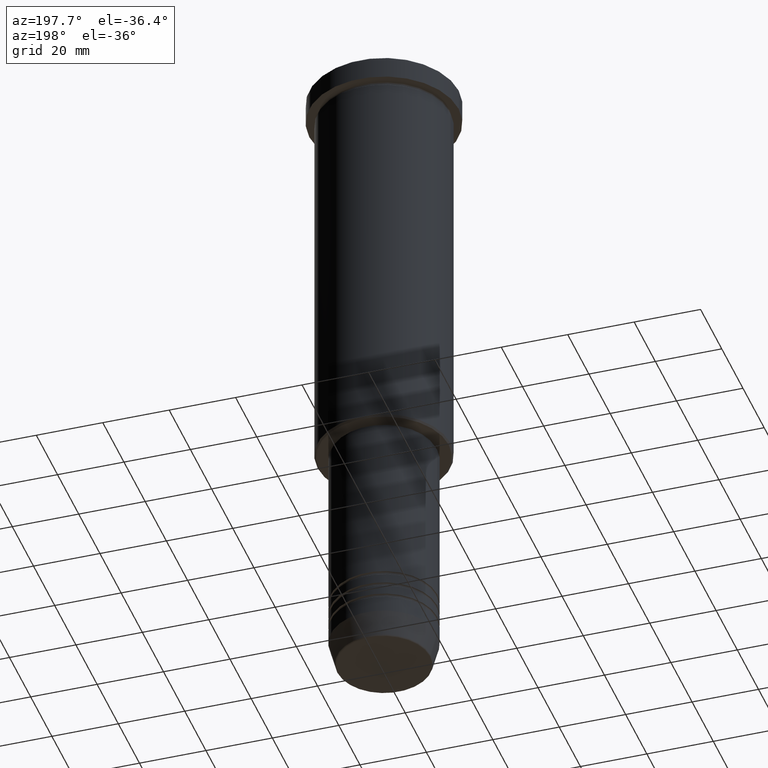
[diagram: clean part render]
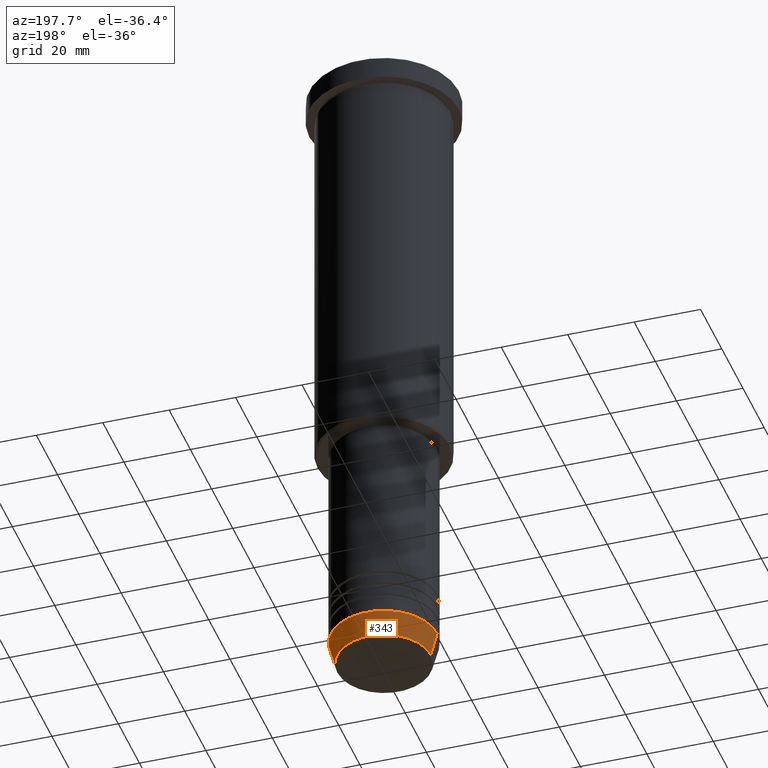
[diagram: same view with one face highlighted and labeled with its STEP entity id]
A machine part, auxiliary view. The second image highlights one B-rep face of the part: STEP entity #343.
In plain terms, the highlighted conical surface has half-angle 15 deg.
Its self-contained STEP definition (entity closure, byte-faithful):
#32 = CARTESIAN_POINT ( 'NONE',  ( 0.000000000000000000, 0.000000000000000000, -199.6294095225512706 ) ) ;
#116 = EDGE_CURVE ( 'NONE', #689, #210, #324, .T. ) ;
#140 = DIRECTION ( 'NONE',  ( -0.2588190451025213501, 3.169619151431772337E-17, 0.9659258262890680902 ) ) ;
#203 = DIRECTION ( 'NONE',  ( 0.2588190451025213501, 0.000000000000000000, 0.9659258262890680902 ) ) ;
#204 = VERTEX_POINT ( 'NONE', #967 ) ;
#210 = VERTEX_POINT ( 'NONE', #706 ) ;
#237 = VERTEX_POINT ( 'NONE', #720 ) ;
#304 = DIRECTION ( 'NONE',  ( 1.000000000000000000, 0.000000000000000000, 0.000000000000000000 ) ) ;
#309 = CARTESIAN_POINT ( 'NONE',  ( 0.000000000000000000, 0.000000000000000000, -192.5000000000000284 ) ) ;
#324 = LINE ( 'NONE', #1071, #821 ) ;
#343 = ADVANCED_FACE ( 'NONE', ( #475 ), #375, .T. ) ;
#344 = DIRECTION ( 'NONE',  ( -0.000000000000000000, -0.000000000000000000, 1.000000000000000000 ) ) ;
#362 = ORIENTED_EDGE ( 'NONE', *, *, #823, .F. ) ;
#375 = CONICAL_SURFACE ( 'NONE', #1024, 16.00000000000000000, 0.2617993877991500740 ) ;
#403 = ORIENTED_EDGE ( 'NONE', *, *, #116, .T. ) ;
#460 = DIRECTION ( 'NONE',  ( 1.000000000000000000, 0.000000000000000000, 0.000000000000000000 ) ) ;
#475 = FACE_OUTER_BOUND ( 'NONE', #735, .T. ) ;
#497 = LINE ( 'NONE', #1018, #1109 ) ;
#632 = EDGE_CURVE ( 'NONE', #204, #210, #995, .T. ) ;
#689 = VERTEX_POINT ( 'NONE', #1044 ) ;
#706 = CARTESIAN_POINT ( 'NONE',  ( -16.00000000000000000, 1.959434878635765131E-15, -192.5000000000000284 ) ) ;
#720 = CARTESIAN_POINT ( 'NONE',  ( 14.08968047592163941, 0.000000000000000000, -199.6294095225512706 ) ) ;
#735 = EDGE_LOOP ( 'NONE', ( #937, #403, #1133, #362 ) ) ;
#740 = AXIS2_PLACEMENT_3D ( 'NONE', #32, #766, #304 ) ;
#766 = DIRECTION ( 'NONE',  ( -0.000000000000000000, -0.000000000000000000, 1.000000000000000000 ) ) ;
#792 = DIRECTION ( 'NONE',  ( 1.000000000000000000, 0.000000000000000000, 0.000000000000000000 ) ) ;
#821 = VECTOR ( 'NONE', #140, 1000.000000000000000 ) ;
#823 = EDGE_CURVE ( 'NONE', #237, #204, #497, .T. ) ;
#844 = EDGE_CURVE ( 'NONE', #237, #689, #1048, .T. ) ;
#846 = CARTESIAN_POINT ( 'NONE',  ( 0.000000000000000000, 0.000000000000000000, -192.5000000000000284 ) ) ;
#925 = AXIS2_PLACEMENT_3D ( 'NONE', #309, #1151, #792 ) ;
#937 = ORIENTED_EDGE ( 'NONE', *, *, #844, .T. ) ;
#967 = CARTESIAN_POINT ( 'NONE',  ( 16.00000000000000000, 0.000000000000000000, -192.5000000000000284 ) ) ;
#995 = CIRCLE ( 'NONE', #925, 16.00000000000000000 ) ;
#1018 = CARTESIAN_POINT ( 'NONE',  ( 16.00000000000000000, 0.000000000000000000, -192.5000000000000284 ) ) ;
#1024 = AXIS2_PLACEMENT_3D ( 'NONE', #846, #344, #460 ) ;
#1044 = CARTESIAN_POINT ( 'NONE',  ( -14.08968047592163941, 1.842461544110202058E-15, -199.6294095225512706 ) ) ;
#1048 = CIRCLE ( 'NONE', #740, 14.08968047592163941 ) ;
#1071 = CARTESIAN_POINT ( 'NONE',  ( -16.00000000000000000, 1.959434878635765131E-15, -192.5000000000000284 ) ) ;
#1109 = VECTOR ( 'NONE', #203, 1000.000000000000000 ) ;
#1133 = ORIENTED_EDGE ( 'NONE', *, *, #632, .F. ) ;
#1151 = DIRECTION ( 'NONE',  ( -0.000000000000000000, -0.000000000000000000, 1.000000000000000000 ) ) ;